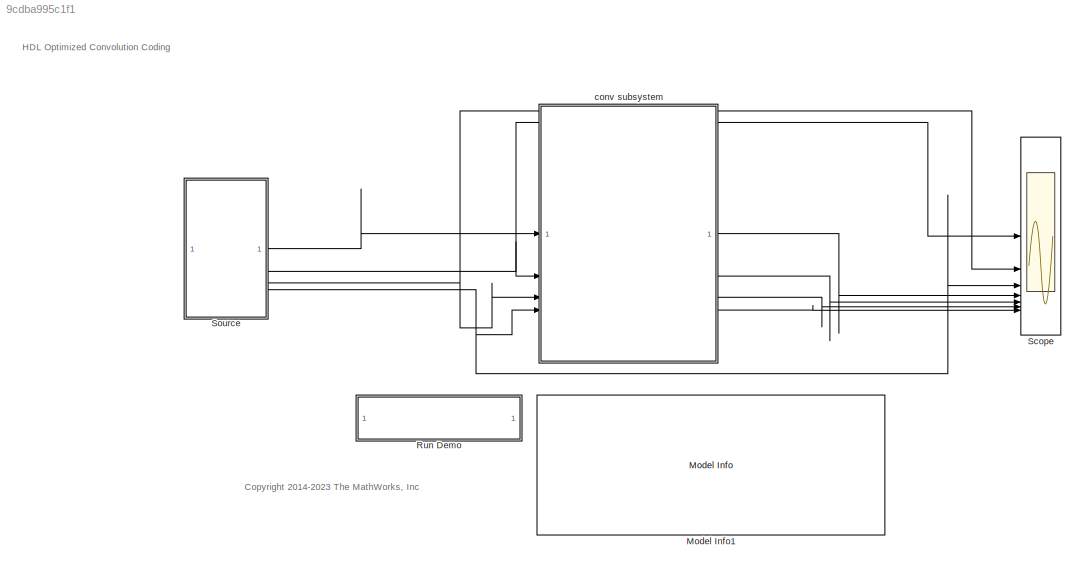
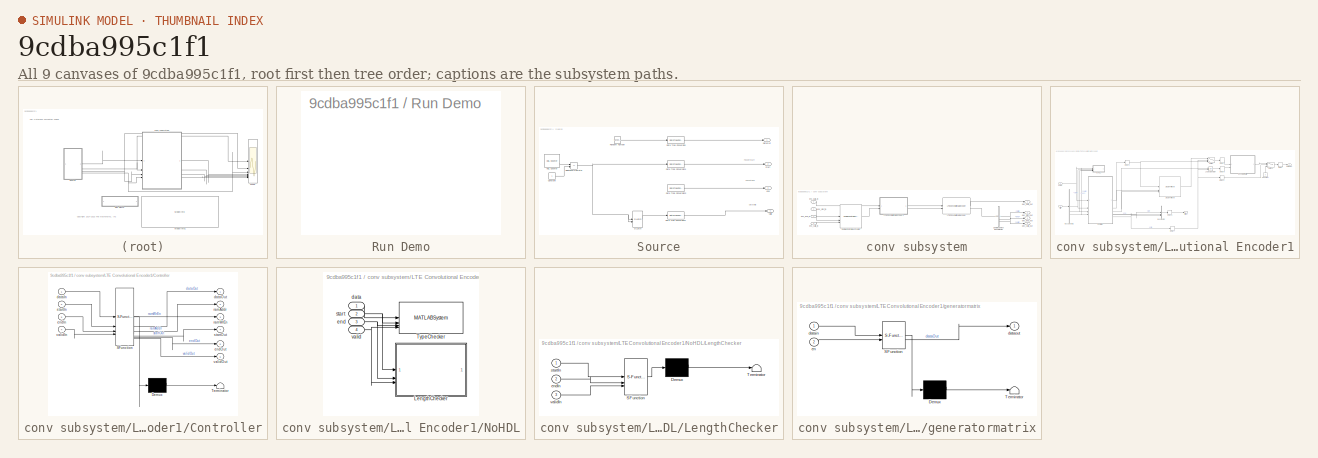
[diagram: thumbnail index - all 9 canvases of the model, root first then tree order]
MODEL slx_9cdba995c1f1
KIND model
CONFIG AbsTol = auto
CONFIG EnableMultiTasking = off
CONFIG FixedStep = auto
CONFIG MaxStep = auto
CONFIG MinStep = auto
CONFIG RelTol = 1e-3
CONFIG SampleTimeConstraint = Unconstrained
CONFIG SolverName = VariableStepAuto
CONFIG StartTime = 0.0
CONFIG StopTime = 10.0
BLOCK [Reference] Model Info1  REF=simulink/Model-Wide
Utilities/Model Info
  SourceBlock = simulink/Model-Wide\nUtilities/Model Info
  SourceType = CMBlock
BLOCK [SubSystem] Run Demo
  OpenFcn = hdldialog(bdroot)
BLOCK [Scope] Scope
  Floating = off
  NumInputPorts = 7
  ScopeSpecificationString = Simulink.scopes.TimeScopeBlockCfg('CurrentConfiguration', extmgr.ConfigurationSet(extmgr.Configuration('Core','General UI',true,'FigureColor',[0.156862745098039 0.156862745098039 0.156862745098039]),extmgr.Configuration('Core','Source UI',true),extmgr.Configuration('Sources','WiredSimulink',true,'DataLoggingSaveFormat','StructureWithTime','DataLoggingDecimation','1'),extmgr.Configuration('Visuals'...<+11132ch>
BLOCK [SubSystem] Source
BLOCK [Constant] Source/Constant
  Commented = on
BLOCK [Reference] Source/D Latch  REF=simulink_extras/Flip Flops/D Latch
  Commented = on
  SourceBlock = simulink_extras/Flip Flops/D Latch
  SourceType = DLatch
BLOCK [DataTypeConversion] Source/Data Type Conversion
  LockScale = on
  OutDataTypeStr = fixdt(1,4)
  OutMax = [65335]
  OutMin = [0]
  RndMeth = Floor
  SaturateOnIntegerOverflow = off
BLOCK [DataTypeConversion] Source/Data Type Conversion1
  OutDataTypeStr = boolean
  RndMeth = Floor
  SaturateOnIntegerOverflow = off
BLOCK [DataTypeConversion] Source/Data Type Conversion2
  OutDataTypeStr = boolean
  RndMeth = Floor
  SaturateOnIntegerOverflow = off
BLOCK [DataTypeConversion] Source/Data Type Conversion3
  OutDataTypeStr = boolean
  RndMeth = Floor
  SaturateOnIntegerOverflow = off
BLOCK [Outport] Source/DataOut
  VectorParamsAs1DForOutWhenUnconnected = off
BLOCK [Reference] Source/HDL Counter  REF=hdlsllib/Sources/HDL Counter
  Commented = on
  SourceBlock = hdlsllib/Sources/HDL Counter
  SourceType = HDL Counter
BLOCK [RandomNumber] Source/Random Number
  Commented = on
  SampleTime = 0.1
BLOCK [RelationalOperator] Source/Relational Operator
  Commented = on
  InputSameDT = off
  Operator = ==
  OutDataTypeStr = boolean
BLOCK [Outport] Source/end
  Port = 3
  VectorParamsAs1DForOutWhenUnconnected = off
BLOCK [Outport] Source/start
  Port = 2
  VectorParamsAs1DForOutWhenUnconnected = off
BLOCK [Outport] Source/valid
  Port = 4
  VectorParamsAs1DForOutWhenUnconnected = off
BLOCK [SubSystem] conv subsystem
BLOCK [Reference] conv subsystem/LTE Convolutional Decoder  REF=whdledac/LTE Convolutional Decoder
  SourceBlock = whdledac/LTE Convolutional Decoder
  SourceType = LTE Convolutional Decoder
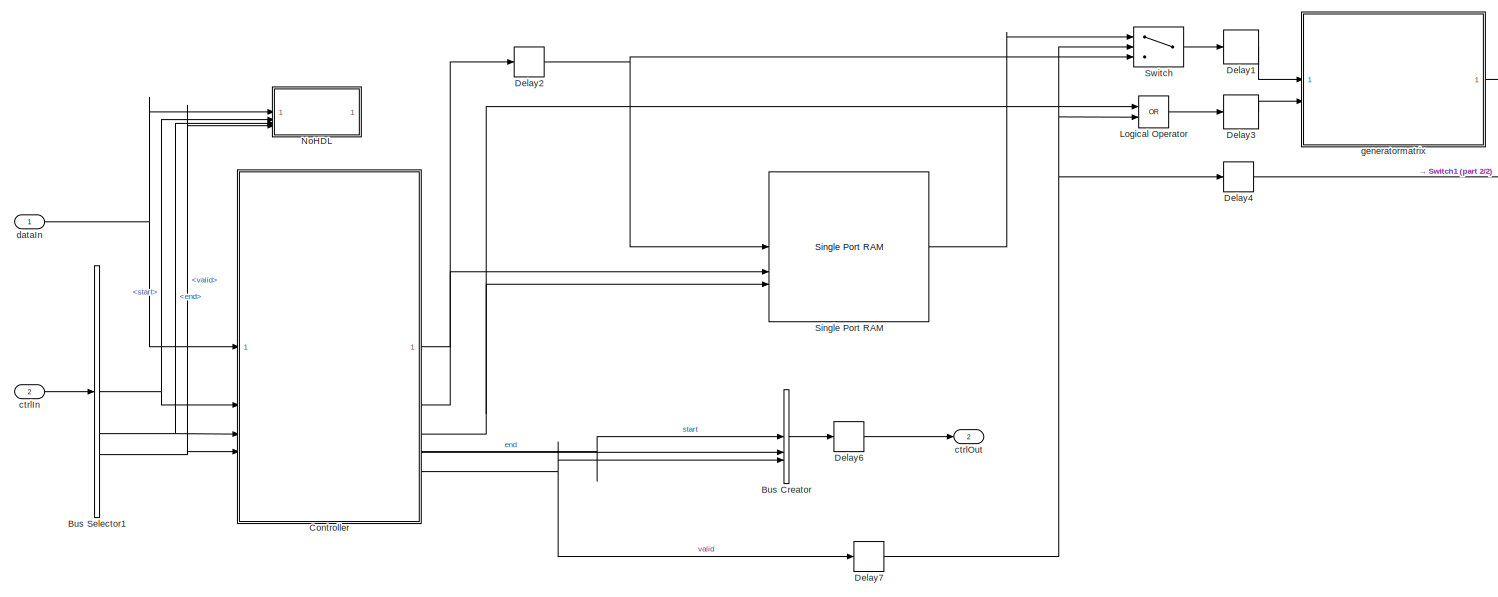
[diagram: conv subsystem/LTE Convolutional Encoder1 - part 1/2, most of the canvas]
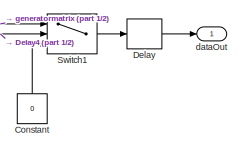
[diagram: conv subsystem/LTE Convolutional Encoder1 - part 2/2, top right region]
BLOCK [SubSystem] conv subsystem/LTE Convolutional Encoder1
  AncestorBlock = whdledac/LTE Convolutional Encoder
BLOCK [BusCreator] conv subsystem/LTE Convolutional Encoder1/Bus Creator
  DisplayOption = bar
  InheritFromInputs = off
  Inputs = 3
  NonVirtualBus = on
  OutDataTypeStr = Bus: samplecontrol
BLOCK [BusSelector] conv subsystem/LTE Convolutional Encoder1/Bus Selector1
  OutputSignals = start,end,valid
BLOCK [Constant] conv subsystem/LTE Convolutional Encoder1/Constant
  OutDataTypeStr = boolean
  SampleTime = -1
  Value = 0
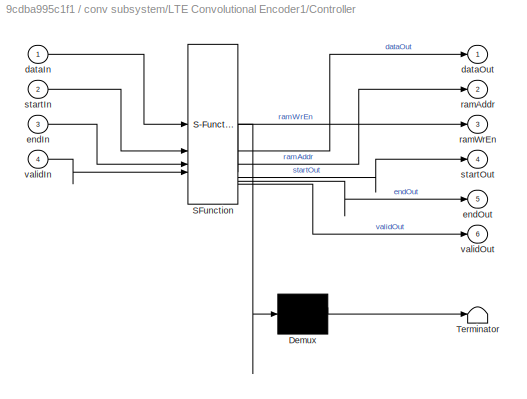
BLOCK [SubSystem] conv subsystem/LTE Convolutional Encoder1/Controller
  ErrorFcn = Stateflow.Translate.translate
  PermitHierarchicalResolution = ExplicitOnly
  SFBlockType = MATLAB Function
  TreatAsAtomicUnit = on
BLOCK [Demux] conv subsystem/LTE Convolutional Encoder1/Controller/ Demux 
  Outputs = 1
BLOCK [S-Function] conv subsystem/LTE Convolutional Encoder1/Controller/ SFunction 
  EnableBusSupport = on
  FunctionName = sf_sfun
  Parameters = BuffSize
  PortCounts = [4 7]
  SFcnIsStateOwnerBlock = off
  SFunctionDeploymentMode = off
  Tag = Stateflow S-Function 1
BLOCK [Terminator] conv subsystem/LTE Convolutional Encoder1/Controller/ Terminator 
BLOCK [Inport] conv subsystem/LTE Convolutional Encoder1/Controller/dataIn
BLOCK [Outport] conv subsystem/LTE Convolutional Encoder1/Controller/dataOut
  VectorParamsAs1DForOutWhenUnconnected = off
BLOCK [Inport] conv subsystem/LTE Convolutional Encoder1/Controller/endIn
  Port = 3
BLOCK [Outport] conv subsystem/LTE Convolutional Encoder1/Controller/endOut
  Port = 5
  VectorParamsAs1DForOutWhenUnconnected = off
BLOCK [Outport] conv subsystem/LTE Convolutional Encoder1/Controller/ramAddr
  Port = 2
  VectorParamsAs1DForOutWhenUnconnected = off
BLOCK [Outport] conv subsystem/LTE Convolutional Encoder1/Controller/ramWrEn
  Port = 3
  VectorParamsAs1DForOutWhenUnconnected = off
BLOCK [Inport] conv subsystem/LTE Convolutional Encoder1/Controller/startIn
  Port = 2
BLOCK [Outport] conv subsystem/LTE Convolutional Encoder1/Controller/startOut
  Port = 4
  VectorParamsAs1DForOutWhenUnconnected = off
BLOCK [Inport] conv subsystem/LTE Convolutional Encoder1/Controller/validIn
  Port = 4
BLOCK [Outport] conv subsystem/LTE Convolutional Encoder1/Controller/validOut
  Port = 6
  VectorParamsAs1DForOutWhenUnconnected = off
BLOCK [Delay] conv subsystem/LTE Convolutional Encoder1/Delay
  DelayLength = 1
  InputPortMap = u0
BLOCK [Delay] conv subsystem/LTE Convolutional Encoder1/Delay1
  DelayLength = 1
  InputPortMap = u0
BLOCK [Delay] conv subsystem/LTE Convolutional Encoder1/Delay2
  DelayLength = 1
  InitialCondition = 0
  InputPortMap = u0
  UseCircularBuffer = on
  UserDataPersistent = on
BLOCK [Delay] conv subsystem/LTE Convolutional Encoder1/Delay3
  DelayLength = 1
  InputPortMap = u0
BLOCK [Delay] conv subsystem/LTE Convolutional Encoder1/Delay4
  DelayLength = 1
  InitialCondition = 0
  InputPortMap = u0
  UseCircularBuffer = on
  UserDataPersistent = on
BLOCK [Delay] conv subsystem/LTE Convolutional Encoder1/Delay6
  DelayLength = 3
  InitialCondition = 0
  InputPortMap = u0
  UseCircularBuffer = on
  UserDataPersistent = on
BLOCK [Delay] conv subsystem/LTE Convolutional Encoder1/Delay7
  DelayLength = 1
  InitialCondition = 0
  InputPortMap = u0
  UseCircularBuffer = on
  UserDataPersistent = on
BLOCK [Logic] conv subsystem/LTE Convolutional Encoder1/Logical Operator
  AllPortsSameDT = off
  IconShape = distinctive
  Operator = OR
  OutDataTypeStr = boolean
BLOCK [SubSystem] conv subsystem/LTE Convolutional Encoder1/NoHDL
BLOCK [SubSystem] conv subsystem/LTE Convolutional Encoder1/NoHDL/LengthChecker
  Commented = on
  ErrorFcn = Stateflow.Translate.translate
  PermitHierarchicalResolution = ExplicitOnly
  SFBlockType = MATLAB Function
  TreatAsAtomicUnit = on
BLOCK [Demux] conv subsystem/LTE Convolutional Encoder1/NoHDL/LengthChecker/ Demux 
  Outputs = 1
BLOCK [S-Function] conv subsystem/LTE Convolutional Encoder1/NoHDL/LengthChecker/ SFunction 
  EnableBusSupport = off
  FunctionName = sf_sfun
  Parameters = BuffSize
  PortCounts = [3 1]
  SFcnIsStateOwnerBlock = off
  SFunctionDeploymentMode = off
  Tag = Stateflow S-Function 4
BLOCK [Terminator] conv subsystem/LTE Convolutional Encoder1/NoHDL/LengthChecker/ Terminator 
BLOCK [Inport] conv subsystem/LTE Convolutional Encoder1/NoHDL/LengthChecker/endIn
  Port = 2
BLOCK [Inport] conv subsystem/LTE Convolutional Encoder1/NoHDL/LengthChecker/startIn
BLOCK [Inport] conv subsystem/LTE Convolutional Encoder1/NoHDL/LengthChecker/validIn
  Port = 3
BLOCK [MATLABSystem] conv subsystem/LTE Convolutional Encoder1/NoHDL/TypeChecker
  Commented = on
  MaskDisplay = disp('ConvEncCheckType');
  MaskType = ltehdl.internal.ConvEncCheckType
  SimulateUsing = Code generation
  System = ltehdl.internal.ConvEncCheckType
BLOCK [Inport] conv subsystem/LTE Convolutional Encoder1/NoHDL/data
BLOCK [Inport] conv subsystem/LTE Convolutional Encoder1/NoHDL/end
  Port = 3
BLOCK [Inport] conv subsystem/LTE Convolutional Encoder1/NoHDL/start
  Port = 2
BLOCK [Inport] conv subsystem/LTE Convolutional Encoder1/NoHDL/valid
  Port = 4
BLOCK [Reference] conv subsystem/LTE Convolutional Encoder1/Single Port RAM  REF=hdlsllib/HDL RAMs/Single Port RAM
  SourceBlock = hdlsllib/HDL RAMs/Single Port RAM
  SourceType = Single-port RAM
BLOCK [Switch] conv subsystem/LTE Convolutional Encoder1/Switch
  Criteria = u2 ~= 0
  InputSameDT = off
  SaturateOnIntegerOverflow = off
BLOCK [Switch] conv subsystem/LTE Convolutional Encoder1/Switch1
  Criteria = u2 ~= 0
  InputSameDT = off
  SaturateOnIntegerOverflow = off
BLOCK [Inport] conv subsystem/LTE Convolutional Encoder1/ctrlIn
  Port = 2
BLOCK [Outport] conv subsystem/LTE Convolutional Encoder1/ctrlOut
  Port = 2
  VectorParamsAs1DForOutWhenUnconnected = off
BLOCK [Inport] conv subsystem/LTE Convolutional Encoder1/dataIn
BLOCK [Outport] conv subsystem/LTE Convolutional Encoder1/dataOut
  VectorParamsAs1DForOutWhenUnconnected = off
BLOCK [SubSystem] conv subsystem/LTE Convolutional Encoder1/generatormatrix
  ErrorFcn = Stateflow.Translate.translate
  PermitHierarchicalResolution = ExplicitOnly
  SFBlockType = MATLAB Function
  TreatAsAtomicUnit = on
BLOCK [Demux] conv subsystem/LTE Convolutional Encoder1/generatormatrix/ Demux 
  Outputs = 1
BLOCK [S-Function] conv subsystem/LTE Convolutional Encoder1/generatormatrix/ SFunction 
  EnableBusSupport = on
  FunctionName = sf_sfun
  PortCounts = [2 2]
  SFcnIsStateOwnerBlock = off
  SFunctionDeploymentMode = off
  Tag = Stateflow S-Function 2
BLOCK [Terminator] conv subsystem/LTE Convolutional Encoder1/generatormatrix/ Terminator 
BLOCK [Inport] conv subsystem/LTE Convolutional Encoder1/generatormatrix/datain
BLOCK [Outport] conv subsystem/LTE Convolutional Encoder1/generatormatrix/dataout
  VectorParamsAs1DForOutWhenUnconnected = off
BLOCK [Inport] conv subsystem/LTE Convolutional Encoder1/generatormatrix/en
  Port = 2
BLOCK [Reference] conv subsystem/Sample Control Bus Creator  REF=whdlutilities/Sample Control
Bus Creator
  SourceBlock = whdlutilities/Sample Control\nBus Creator
  SourceType = Sample Control Bus Creator
BLOCK [Reference] conv subsystem/Sample Control Bus Selector  REF=whdlutilities/Sample Control
Bus Selector
  SourceBlock = whdlutilities/Sample Control\nBus Selector
BLOCK [Outport] conv subsystem/dec_data_out
  VectorParamsAs1DForOutWhenUnconnected = off
BLOCK [Outport] conv subsystem/dec_end_out
  Port = 3
  VectorParamsAs1DForOutWhenUnconnected = off
BLOCK [Outport] conv subsystem/dec_start_out
  Port = 2
  VectorParamsAs1DForOutWhenUnconnected = off
BLOCK [Outport] conv subsystem/dec_valid_out
  Port = 4
  VectorParamsAs1DForOutWhenUnconnected = off
BLOCK [Inport] conv subsystem/enc_data_in
BLOCK [Inport] conv subsystem/enc_end_in
  OutDataTypeStr = boolean
  Port = 3
BLOCK [Inport] conv subsystem/enc_start_in
  OutDataTypeStr = boolean
  Port = 2
BLOCK [Inport] conv subsystem/enc_valid_in
  OutDataTypeStr = boolean
  Port = 4
ANNOTATION (root): HDL Optimized Convolution Coding
ANNOTATION (root): <copyright redacted>
ANNOTATION Source: DataValid
ANNOTATION Source: PacketEnd
ANNOTATION Source: PacketStart
LINE Source/Constant:1 -> Source/Relational Operator:2
LINE Source/D Latch:1 -> Source/Data Type Conversion3:1
LINE Source/Data Type Conversion1:1 -> Source/start:1
LINE Source/Data Type Conversion2:1 -> Source/end:1
LINE Source/Data Type Conversion3:1 -> Source/valid:1
LINE Source/Data Type Conversion:1 -> Source/DataOut:1
LINE Source/HDL Counter:2 -> Source/Relational Operator:1
LINE Source/Random Number:1 -> Source/Data Type Conversion:1
NET Source/Relational Operator:1 -> Source/D Latch:1, Source/D Latch:2, Source/Data Type Conversion1:1
LINE Source:1 -> conv subsystem:1
NET Source:2 -> Scope:1, conv subsystem:2
NET Source:3 -> Scope:2, conv subsystem:3
NET Source:4 -> Scope:3, conv subsystem:4
LINE conv subsystem/LTE Convolutional Decoder:1 -> conv subsystem/dec_data_out:1
LINE conv subsystem/LTE Convolutional Decoder:2 -> conv subsystem/Sample Control Bus Selector:1
LINE conv subsystem/LTE Convolutional Encoder1:1 -> conv subsystem/LTE Convolutional Decoder:1
LINE conv subsystem/LTE Convolutional Encoder1:2 -> conv subsystem/LTE Convolutional Decoder:2
LINE conv subsystem/Sample Control Bus Creator:1 -> conv subsystem/LTE Convolutional Encoder1:2
LINE conv subsystem/Sample Control Bus Selector:1 -> conv subsystem/dec_start_out:1
LINE conv subsystem/Sample Control Bus Selector:2 -> conv subsystem/dec_end_out:1
LINE conv subsystem/Sample Control Bus Selector:3 -> conv subsystem/dec_valid_out:1
LINE conv subsystem/enc_data_in:1 -> conv subsystem/LTE Convolutional Encoder1:1
LINE conv subsystem/enc_end_in:1 -> conv subsystem/Sample Control Bus Creator:2
LINE conv subsystem/enc_start_in:1 -> conv subsystem/Sample Control Bus Creator:1
LINE conv subsystem/enc_valid_in:1 -> conv subsystem/Sample Control Bus Creator:3
LINE conv subsystem:1 -> Scope:4
LINE conv subsystem:2 -> Scope:5
LINE conv subsystem:3 -> Scope:6
LINE conv subsystem:4 -> Scope:7
note: NET lines group one-source signal fan-out (src -> all destinations, sorted); 1:1 wires keep LINE
CHART conv subsystem/LTE Convolutional Encoder1/Controller states=1 transitions=1
  STATE_LABEL 'eML_blk_kernel()'
  STATE_LABEL 'SCRIPT:\nfunction [dataOut, ramAddr, ramWrEn, startOut, endOut, validOut] = Controller(dataIn,startIn,endIn,validIn, BuffSize)\n    %#codegen\n    \n    % states\n    ENC_IDLE          = 0;        % waiting for start\n    ENC_STREAM_IN     = 1;        % streaming input and writing into RAM\n    ENC_STREAM_IN_END = 2;        % last input bit\n    ENC_STREAM_OUT    = 3;        % stream data out of RAM throu...<+3381ch>'
CHART conv subsystem/LTE Convolutional Encoder1/generatormatrix states=1 transitions=1
  STATE_LABEL 'eML_blk_kernel()'
  STATE_LABEL "SCRIPT:\nfunction dataOut  = FunctionGenerator(dataIn,en)\n    %#codegen\n    \n    G_value = [...\n        1 0 1 1 0 1 1;\n        1 1 1 1 0 0 1;\n        1 1 1 0 1 0 1];\n    \n    localFimath = fimath(...\n        'OverflowAction', 'Wrap', ...\n        'ProductMode', 'SpecifyPrecision', ...\n        'ProductWordLength', 1, ...\n        'ProductFractionLength', 0, ...\n        'SumMode', 'SpecifyPrecision', ....<+526ch>"
CHART conv subsystem/LTE Convolutional Encoder1/NoHDL/LengthChecker states=1 transitions=1
  STATE_LABEL 'eML_blk_kernel()'
  STATE_LABEL 'SCRIPT:\nfunction checkMsgLength(startIn,endIn,validIn, BuffSize)\n    % Check the length of frame if matches the LTE standard.\n    \n    WAIT_S = ufi(0,2,0);\n    COUNT_S = ufi(1,2,0);\n    RST_S = ufi(2,2,0);\n    \n    persistent lenState;\n    persistent lenCounter;\n    \n    if isempty(lenState)\n        lenState= WAIT_S;\n        lenCounter = ufi(0,17,0);\n    end\n    \n    nextLenState   = lenState;\n   ...<+1138ch>'
CHART  states=0 transitions=0
CHART  states=0 transitions=0
CHART  states=0 transitions=0
